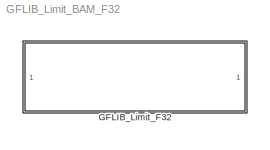
MODEL GFLIB_Limit_BAM_F32
KIND model
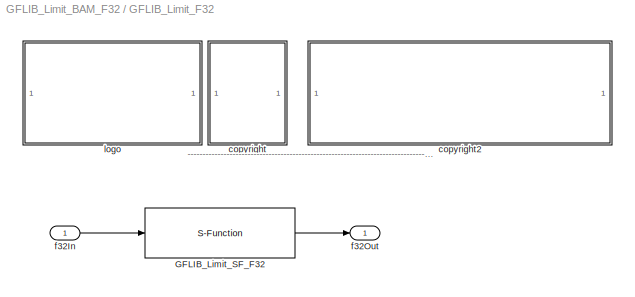
BLOCK [SubSystem] GFLIB_Limit_F32
  Ports = [1, 1]
  RequestExecContextInheritance = off
  SID = 1
BLOCK [S-Function] GFLIB_Limit_F32/GFLIB_Limit_SF_F32
  EnableBusSupport = off
  FunctionName = GFLIB_Limit_SF_F32
  Parameters = f32UpperLimit,f32LowerLim
  Ports = [1, 1]
  SID = 3
BLOCK [SubSystem] GFLIB_Limit_F32/<copyright redacted>
  Ports = []
  RequestExecContextInheritance = off
  SID = 4
BLOCK [SubSystem] GFLIB_Limit_F32/copyright2
  Ports = []
  RequestExecContextInheritance = off
  SID = 5
BLOCK [Inport] GFLIB_Limit_F32/f32In
  IconDisplay = Port number
  SID = 2
BLOCK [Outport] GFLIB_Limit_F32/f32Out
  IconDisplay = Port number
  SID = 7
BLOCK [SubSystem] GFLIB_Limit_F32/logo
  Ports = []
  RequestExecContextInheritance = off
  SID = 6
ANNOTATION GFLIB_Limit_F32: ---------------------------------------------------------------------------------------------------------------------------------------------------------------------------------------------------
LINE GFLIB_Limit_F32/GFLIB_Limit_SF_F32:1 -> GFLIB_Limit_F32/f32Out:1
LINE GFLIB_Limit_F32/f32In:1 -> GFLIB_Limit_F32/GFLIB_Limit_SF_F32:1
